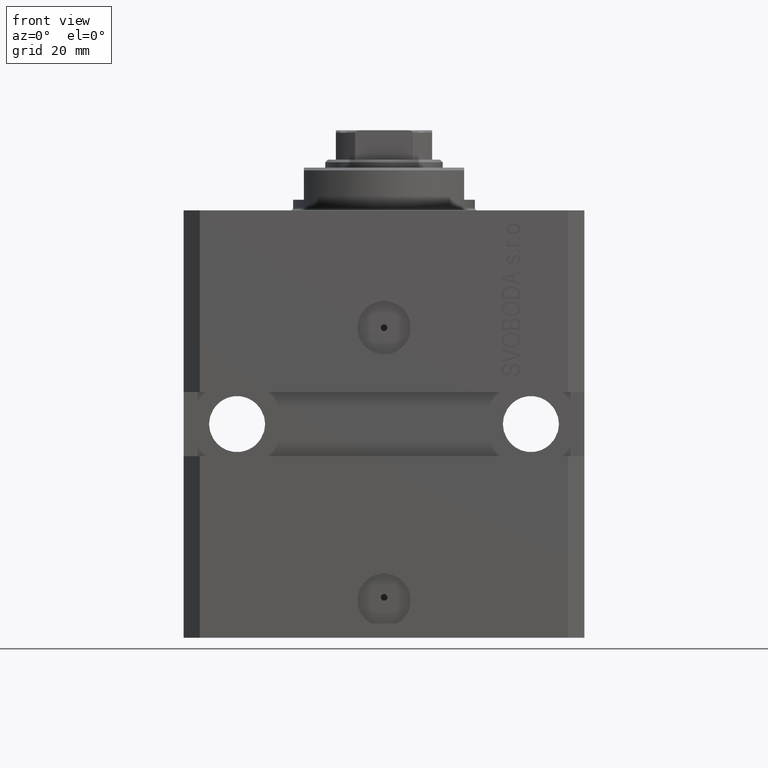
[diagram: clean part render]
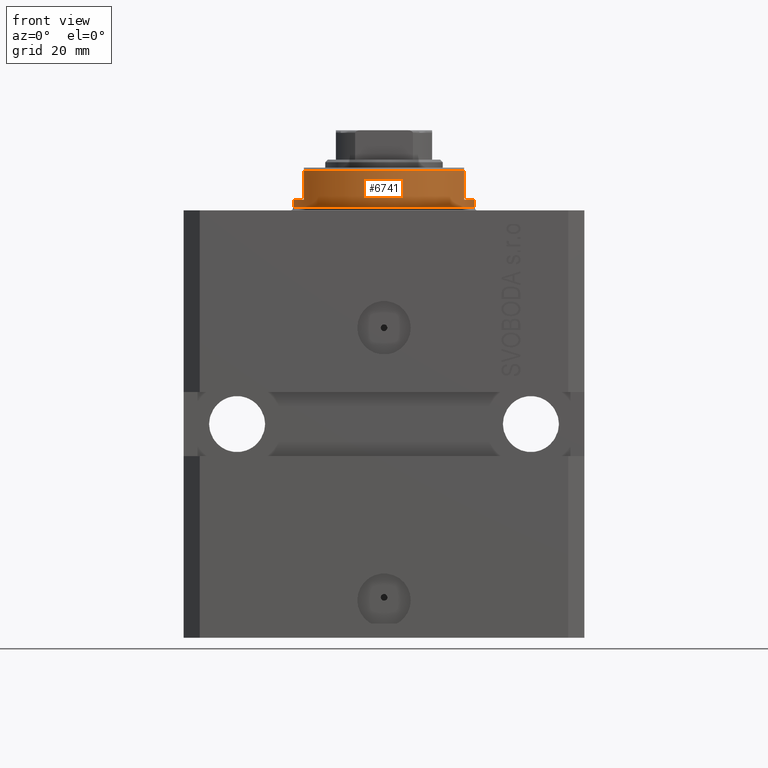
[diagram: same view with one face highlighted and labeled with its STEP entity id]
A machine part, front view. The second image highlights one B-rep face of the part: STEP entity #6741.
In plain terms, the highlighted cylindrical surface (partial cylindrical patch) has radius 17 mm, axis along (0, 0, -1).
Its self-contained STEP definition (entity closure, byte-faithful):
#220 = VECTOR ( 'NONE', #4413, 1000.000000000000000 ) ;
#624 = CARTESIAN_POINT ( 'NONE',  ( -17.00000000000000000, 2.081899558550500280E-15, -8.000000000000000000 ) ) ;
#1795 = CARTESIAN_POINT ( 'NONE',  ( 17.00000000000000000, 0.000000000000000000, -0.5000000000000004441 ) ) ;
#2627 = VERTEX_POINT ( 'NONE', #1795 ) ;
#2987 = CIRCLE ( 'NONE', #44330, 17.00000000000000000 ) ;
#3008 = EDGE_CURVE ( 'NONE', #45264, #28438, #37919, .T. ) ;
#3870 = CARTESIAN_POINT ( 'NONE',  ( 0.000000000000000000, 0.000000000000000000, -8.000000000000000000 ) ) ;
#4413 = DIRECTION ( 'NONE',  ( 0.000000000000000000, 0.000000000000000000, -1.000000000000000000 ) ) ;
#4998 = DIRECTION ( 'NONE',  ( -0.000000000000000000, -0.000000000000000000, -1.000000000000000000 ) ) ;
#5476 = EDGE_CURVE ( 'NONE', #42331, #24983, #37053, .T. ) ;
#6021 = DIRECTION ( 'NONE',  ( 0.000000000000000000, 0.000000000000000000, -1.000000000000000000 ) ) ;
#6037 = AXIS2_PLACEMENT_3D ( 'NONE', #17678, #46870, #14083 ) ;
#6199 = CARTESIAN_POINT ( 'NONE',  ( 15.00000000000000000, -8.000000000000001776, -7.500000000000007105 ) ) ;
#6503 = CARTESIAN_POINT ( 'NONE',  ( 0.000000000000000000, 0.000000000000000000, -2.000000000000000000 ) ) ;
#6625 = EDGE_CURVE ( 'NONE', #12350, #45264, #17542, .T. ) ;
#6741 = ADVANCED_FACE ( 'NONE', ( #43873 ), #11298, .T. ) ;
#7197 = EDGE_CURVE ( 'NONE', #2627, #24983, #2987, .T. ) ;
#7861 = CARTESIAN_POINT ( 'NONE',  ( -17.00000000000000000, 2.081899558550500280E-15, -2.000000000000000000 ) ) ;
#8935 = CARTESIAN_POINT ( 'NONE',  ( 15.00000000000000000, -8.000000000000001776, -8.000000000000000000 ) ) ;
#10218 = ORIENTED_EDGE ( 'NONE', *, *, #19241, .T. ) ;
#10833 = DIRECTION ( 'NONE',  ( 1.000000000000000000, 0.000000000000000000, 0.000000000000000000 ) ) ;
#11190 = EDGE_CURVE ( 'NONE', #42548, #42331, #42758, .T. ) ;
#11298 = CYLINDRICAL_SURFACE ( 'NONE', #15206, 17.00000000000000000 ) ;
#11571 = EDGE_LOOP ( 'NONE', ( #30778, #20464, #10218, #44639, #28632, #41767, #15352, #17076 ) ) ;
#12350 = VERTEX_POINT ( 'NONE', #29414 ) ;
#13806 = CARTESIAN_POINT ( 'NONE',  ( -14.99999999999999645, -8.000000000000003553, -2.000000000000000000 ) ) ;
#14083 = DIRECTION ( 'NONE',  ( -1.000000000000000000, 0.000000000000000000, 0.000000000000000000 ) ) ;
#15206 = AXIS2_PLACEMENT_3D ( 'NONE', #3870, #43388, #10833 ) ;
#15352 = ORIENTED_EDGE ( 'NONE', *, *, #31913, .T. ) ;
#17076 = ORIENTED_EDGE ( 'NONE', *, *, #7197, .T. ) ;
#17477 = CARTESIAN_POINT ( 'NONE',  ( -17.00000000000000000, 2.081899558550500280E-15, -0.5000000000000004441 ) ) ;
#17542 = CIRCLE ( 'NONE', #6037, 17.00000000000000000 ) ;
#17656 = CARTESIAN_POINT ( 'NONE',  ( -15.00000000000000000, -8.000000000000001776, -7.500000000000007105 ) ) ;
#17668 = CARTESIAN_POINT ( 'NONE',  ( 14.99999999999999645, -8.000000000000003553, -2.000000000000000000 ) ) ;
#17678 = CARTESIAN_POINT ( 'NONE',  ( 0.000000000000000000, 0.000000000000000000, -2.000000000000000000 ) ) ;
#17738 = DIRECTION ( 'NONE',  ( -0.000000000000000000, -0.000000000000000000, 1.000000000000000000 ) ) ;
#17769 = VERTEX_POINT ( 'NONE', #17656 ) ;
#18188 = VECTOR ( 'NONE', #23557, 1000.000000000000000 ) ;
#19241 = EDGE_CURVE ( 'NONE', #42548, #17769, #40829, .T. ) ;
#20464 = ORIENTED_EDGE ( 'NONE', *, *, #11190, .F. ) ;
#21102 = LINE ( 'NONE', #35712, #21464 ) ;
#21464 = VECTOR ( 'NONE', #17738, 1000.000000000000000 ) ;
#22513 = CARTESIAN_POINT ( 'NONE',  ( 0.000000000000000000, 0.000000000000000000, -0.5000000000000004441 ) ) ;
#22640 = CARTESIAN_POINT ( 'NONE',  ( -15.00000000000000000, -8.000000000000001776, -8.000000000000000000 ) ) ;
#23557 = DIRECTION ( 'NONE',  ( 0.000000000000000000, 0.000000000000000000, -1.000000000000000000 ) ) ;
#24983 = VERTEX_POINT ( 'NONE', #17477 ) ;
#26681 = VECTOR ( 'NONE', #33241, 1000.000000000000000 ) ;
#27345 = DIRECTION ( 'NONE',  ( 0.000000000000000000, 0.000000000000000000, 1.000000000000000000 ) ) ;
#28438 = VERTEX_POINT ( 'NONE', #6199 ) ;
#28536 = CIRCLE ( 'NONE', #44561, 17.00000000000000000 ) ;
#28632 = ORIENTED_EDGE ( 'NONE', *, *, #3008, .F. ) ;
#29414 = CARTESIAN_POINT ( 'NONE',  ( 17.00000000000000000, 0.000000000000000000, -2.000000000000000000 ) ) ;
#30646 = DIRECTION ( 'NONE',  ( 1.000000000000000000, 0.000000000000000000, 0.000000000000000000 ) ) ;
#30778 = ORIENTED_EDGE ( 'NONE', *, *, #5476, .F. ) ;
#31913 = EDGE_CURVE ( 'NONE', #12350, #2627, #21102, .T. ) ;
#33241 = DIRECTION ( 'NONE',  ( -0.000000000000000000, -0.000000000000000000, 1.000000000000000000 ) ) ;
#35150 = AXIS2_PLACEMENT_3D ( 'NONE', #6503, #6021, #45766 ) ;
#35228 = DIRECTION ( 'NONE',  ( -1.000000000000000000, 0.000000000000000000, 0.000000000000000000 ) ) ;
#35712 = CARTESIAN_POINT ( 'NONE',  ( 17.00000000000000000, 0.000000000000000000, -8.000000000000000000 ) ) ;
#37053 = LINE ( 'NONE', #624, #26681 ) ;
#37919 = LINE ( 'NONE', #8935, #18188 ) ;
#39725 = EDGE_CURVE ( 'NONE', #17769, #28438, #28536, .T. ) ;
#40829 = LINE ( 'NONE', #22640, #220 ) ;
#41459 = CARTESIAN_POINT ( 'NONE',  ( 0.000000000000000000, 0.000000000000000000, -7.500000000000007105 ) ) ;
#41767 = ORIENTED_EDGE ( 'NONE', *, *, #6625, .F. ) ;
#42331 = VERTEX_POINT ( 'NONE', #7861 ) ;
#42548 = VERTEX_POINT ( 'NONE', #13806 ) ;
#42758 = CIRCLE ( 'NONE', #35150, 17.00000000000000000 ) ;
#43388 = DIRECTION ( 'NONE',  ( -0.000000000000000000, -0.000000000000000000, 1.000000000000000000 ) ) ;
#43873 = FACE_OUTER_BOUND ( 'NONE', #11571, .T. ) ;
#44330 = AXIS2_PLACEMENT_3D ( 'NONE', #22513, #4998, #30646 ) ;
#44561 = AXIS2_PLACEMENT_3D ( 'NONE', #41459, #27345, #35228 ) ;
#44639 = ORIENTED_EDGE ( 'NONE', *, *, #39725, .T. ) ;
#45264 = VERTEX_POINT ( 'NONE', #17668 ) ;
#45766 = DIRECTION ( 'NONE',  ( -1.000000000000000000, 0.000000000000000000, 0.000000000000000000 ) ) ;
#46870 = DIRECTION ( 'NONE',  ( 0.000000000000000000, 0.000000000000000000, -1.000000000000000000 ) ) ;